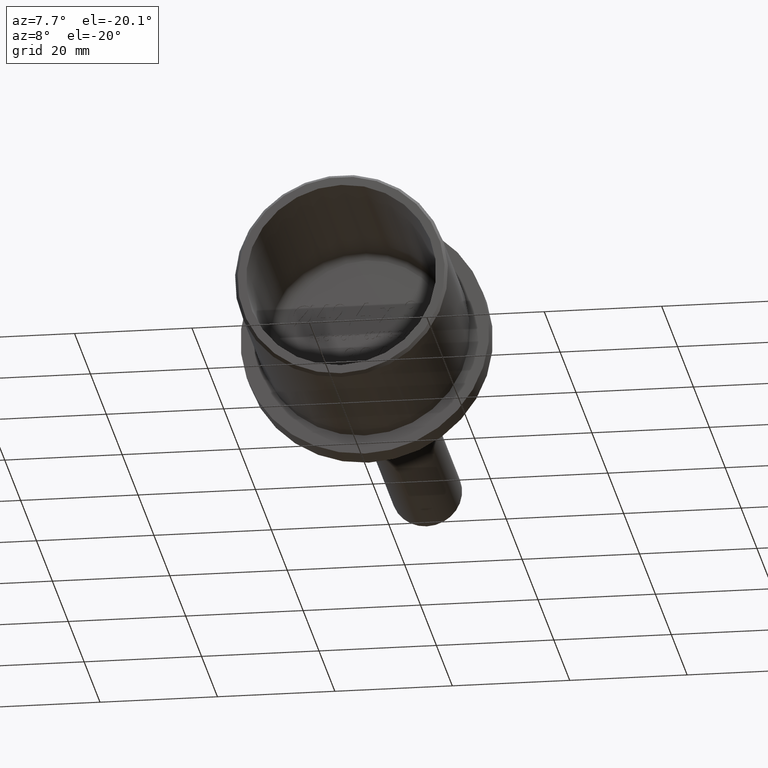
[diagram: clean part render]
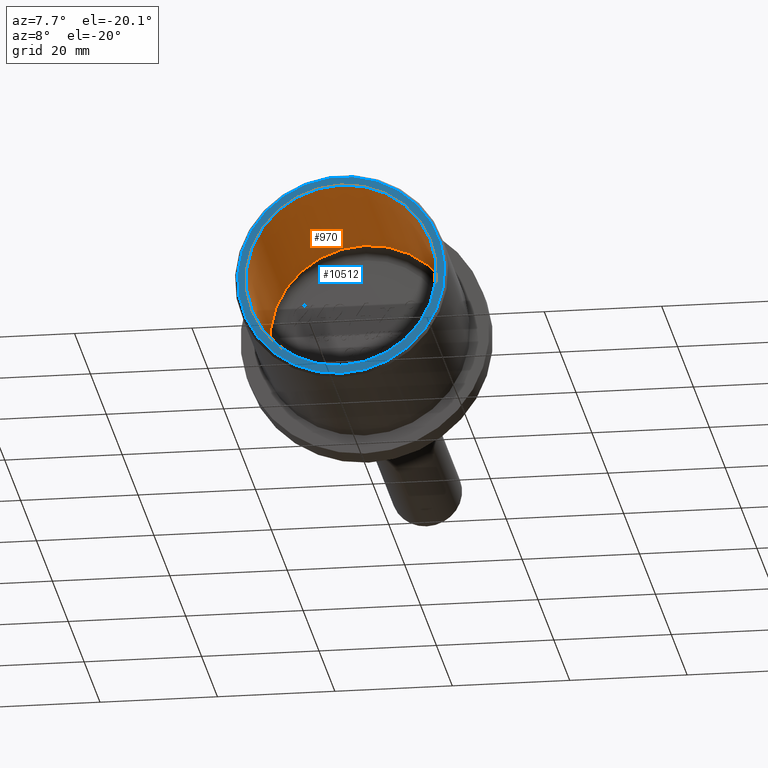
[diagram: same view with the hole feature highlighted: cylindrical wall and planar end face, labeled with their STEP entity ids]
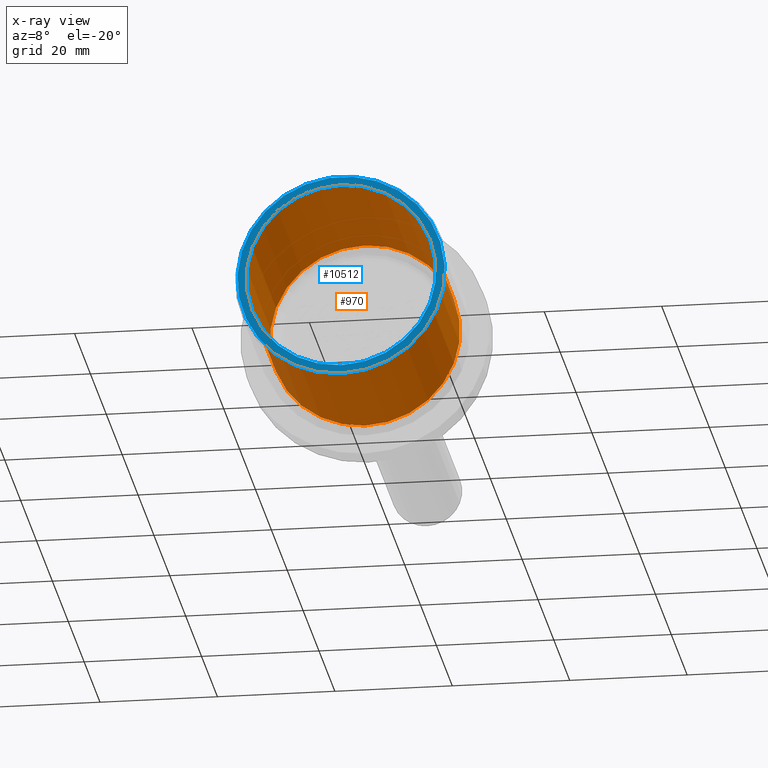
[diagram: x-ray of the same camera — body ghosted, the hole faces saturated]
A machine part, auxiliary view. The highlighted faces form one hole feature of diameter 32.4 mm: the cylindrical wall (entity #970, orange) and its adjacent planar end face (entity #10512, blue) — they share a circular edge in the B-rep.
The next image is the same camera in x-ray (body ghosted, the hole faces saturated) — the bore reads through the body.
Wall:
#512 = ORIENTED_EDGE ( 'NONE', *, *, #20520, .F. ) ;
#970 = ADVANCED_FACE ( 'NONE', ( #15934, #11629 ), #3770, .F. ) ;
#2494 = CIRCLE ( 'NONE', #21777, 16.20000000000000284 ) ;
#2946 = CARTESIAN_POINT ( 'NONE',  ( 0.000000000000000000, 30.00000000000000000, 0.000000000000000000 ) ) ;
#3770 = CYLINDRICAL_SURFACE ( 'NONE', #12428, 16.20000000000000284 ) ;
#4620 = DIRECTION ( 'NONE',  ( -0.000000000000000000, -1.000000000000000000, -0.000000000000000000 ) ) ;
#5220 = ORIENTED_EDGE ( 'NONE', *, *, #7780, .T. ) ;
#6290 = DIRECTION ( 'NONE',  ( 0.000000000000000000, 0.000000000000000000, -1.000000000000000000 ) ) ;
#7780 = EDGE_CURVE ( 'NONE', #8185, #8185, #2494, .T. ) ;
#8185 = VERTEX_POINT ( 'NONE', #15987 ) ;
#8247 = DIRECTION ( 'NONE',  ( -0.000000000000000000, -1.000000000000000000, -0.000000000000000000 ) ) ;
#11556 = DIRECTION ( 'NONE',  ( -0.000000000000000000, -1.000000000000000000, -0.000000000000000000 ) ) ;
#11629 = FACE_OUTER_BOUND ( 'NONE', #16862, .T. ) ;
#12428 = AXIS2_PLACEMENT_3D ( 'NONE', #15200, #8247, #6290 ) ;
#12774 = VERTEX_POINT ( 'NONE', #19394 ) ;
#12991 = DIRECTION ( 'NONE',  ( 0.000000000000000000, 0.000000000000000000, -1.000000000000000000 ) ) ;
#15200 = CARTESIAN_POINT ( 'NONE',  ( 0.000000000000000000, 32.00000000000000000, 0.000000000000000000 ) ) ;
#15934 = FACE_OUTER_BOUND ( 'NONE', #18814, .T. ) ;
#15987 = CARTESIAN_POINT ( 'NONE',  ( 0.000000000000000000, 0.000000000000000000, -16.20000000000000284 ) ) ;
#16340 = CIRCLE ( 'NONE', #20522, 16.20000000000000284 ) ;
#16471 = DIRECTION ( 'NONE',  ( 0.000000000000000000, 0.000000000000000000, -1.000000000000000000 ) ) ;
#16862 = EDGE_LOOP ( 'NONE', ( #512 ) ) ;
#18814 = EDGE_LOOP ( 'NONE', ( #5220 ) ) ;
#19394 = CARTESIAN_POINT ( 'NONE',  ( 0.000000000000000000, 30.00000000000000000, -16.20000000000000284 ) ) ;
#20520 = EDGE_CURVE ( 'NONE', #12774, #12774, #16340, .T. ) ;
#20522 = AXIS2_PLACEMENT_3D ( 'NONE', #2946, #4620, #12991 ) ;
#21777 = AXIS2_PLACEMENT_3D ( 'NONE', #21944, #11556, #16471 ) ;
#21944 = CARTESIAN_POINT ( 'NONE',  ( 0.000000000000000000, 0.000000000000000000, 0.000000000000000000 ) ) ;
End face:
#236 = ORIENTED_EDGE ( 'NONE', *, *, #7780, .F. ) ;
#562 = FACE_BOUND ( 'NONE', #20412, .T. ) ;
#980 = DIRECTION ( 'NONE',  ( 0.000000000000000000, 0.000000000000000000, -1.000000000000000000 ) ) ;
#1695 = VERTEX_POINT ( 'NONE', #19235 ) ;
#2494 = CIRCLE ( 'NONE', #21777, 16.20000000000000284 ) ;
#2701 = DIRECTION ( 'NONE',  ( 0.000000000000000000, -1.000000000000000000, -0.000000000000000000 ) ) ;
#5316 = CARTESIAN_POINT ( 'NONE',  ( 0.000000000000000000, 0.000000000000000000, 0.000000000000000000 ) ) ;
#7780 = EDGE_CURVE ( 'NONE', #8185, #8185, #2494, .T. ) ;
#8185 = VERTEX_POINT ( 'NONE', #15987 ) ;
#8861 = DIRECTION ( 'NONE',  ( -0.000000000000000000, -1.000000000000000000, -0.000000000000000000 ) ) ;
#9380 = EDGE_LOOP ( 'NONE', ( #14208 ) ) ;
#9663 = PLANE ( 'NONE',  #21514 ) ;
#10512 = ADVANCED_FACE ( 'NONE', ( #11359, #562 ), #9663, .T. ) ;
#11359 = FACE_OUTER_BOUND ( 'NONE', #9380, .T. ) ;
#11556 = DIRECTION ( 'NONE',  ( -0.000000000000000000, -1.000000000000000000, -0.000000000000000000 ) ) ;
#11831 = CIRCLE ( 'NONE', #14989, 17.65000000000000213 ) ;
#13757 = EDGE_CURVE ( 'NONE', #1695, #1695, #11831, .T. ) ;
#14208 = ORIENTED_EDGE ( 'NONE', *, *, #13757, .T. ) ;
#14851 = CARTESIAN_POINT ( 'NONE',  ( 17.65000000000000213, -6.123233995736714267E-17, 0.000000000000000000 ) ) ;
#14989 = AXIS2_PLACEMENT_3D ( 'NONE', #5316, #8861, #19050 ) ;
#15987 = CARTESIAN_POINT ( 'NONE',  ( 0.000000000000000000, 0.000000000000000000, -16.20000000000000284 ) ) ;
#16471 = DIRECTION ( 'NONE',  ( 0.000000000000000000, 0.000000000000000000, -1.000000000000000000 ) ) ;
#19050 = DIRECTION ( 'NONE',  ( 0.000000000000000000, 0.000000000000000000, -1.000000000000000000 ) ) ;
#19235 = CARTESIAN_POINT ( 'NONE',  ( 0.000000000000000000, 0.000000000000000000, -17.65000000000000213 ) ) ;
#20412 = EDGE_LOOP ( 'NONE', ( #236 ) ) ;
#21514 = AXIS2_PLACEMENT_3D ( 'NONE', #14851, #2701, #980 ) ;
#21777 = AXIS2_PLACEMENT_3D ( 'NONE', #21944, #11556, #16471 ) ;
#21944 = CARTESIAN_POINT ( 'NONE',  ( 0.000000000000000000, 0.000000000000000000, 0.000000000000000000 ) ) ;